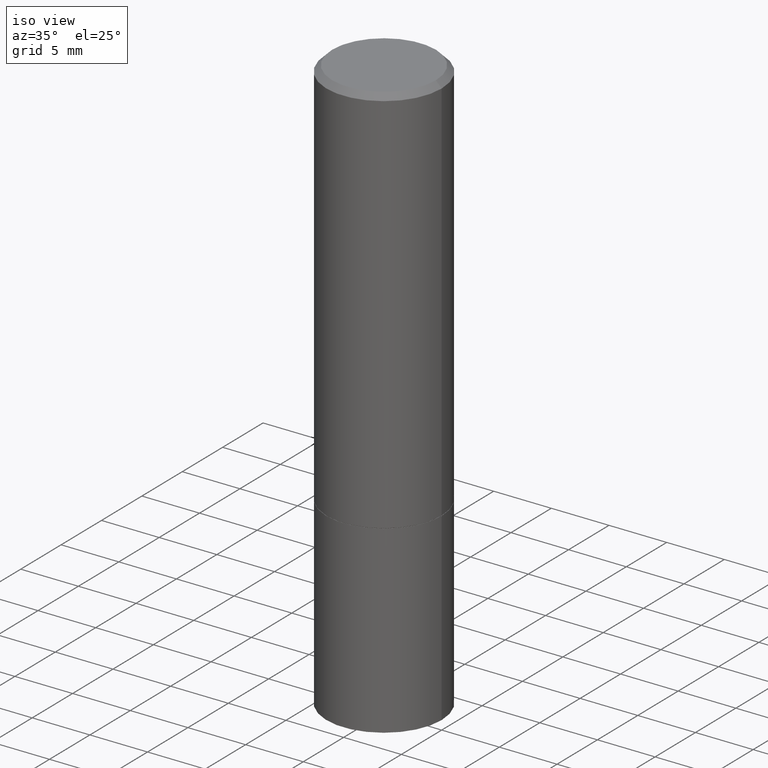
[diagram: clean part render]
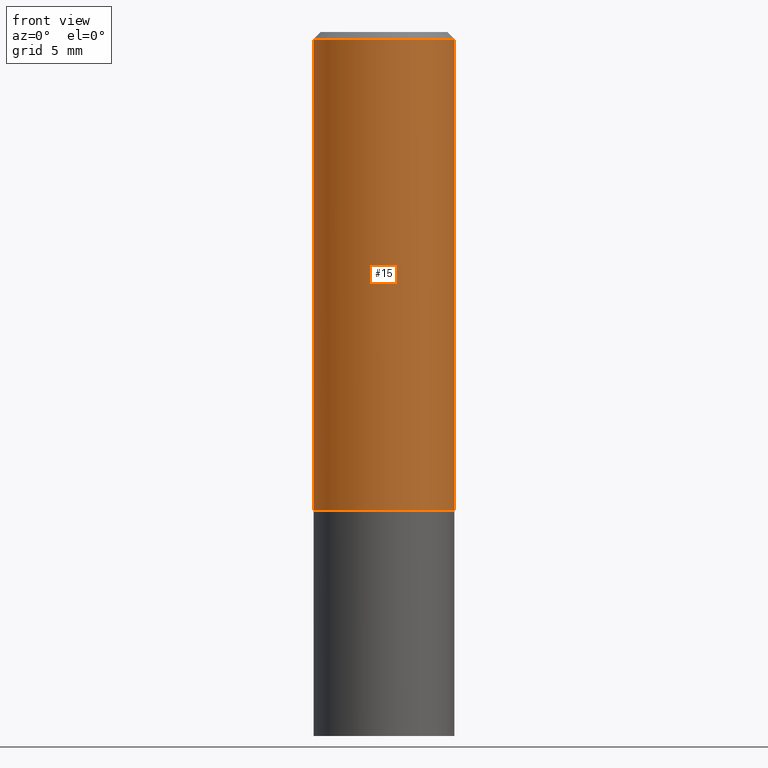
[diagram: tour spotlight — one face highlighted and labeled with its STEP entity id]
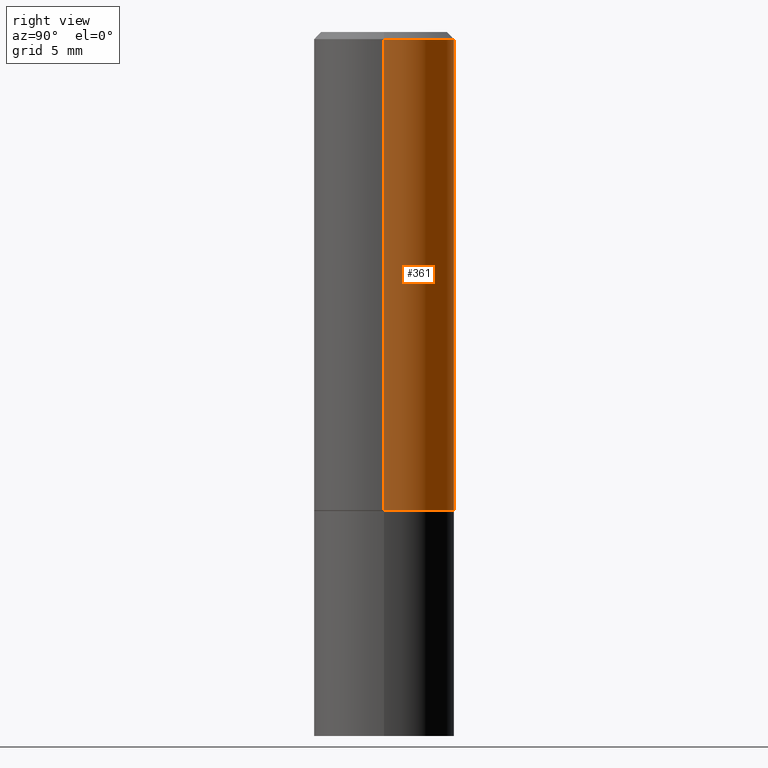
[diagram: tour spotlight — one face highlighted and labeled with its STEP entity id]
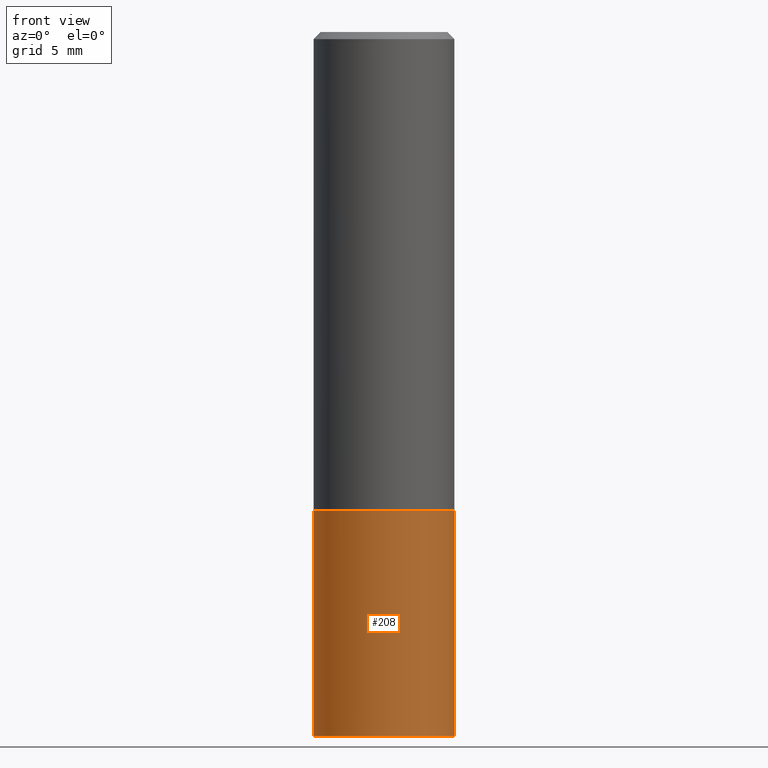
[diagram: tour spotlight — one face highlighted and labeled with its STEP entity id]
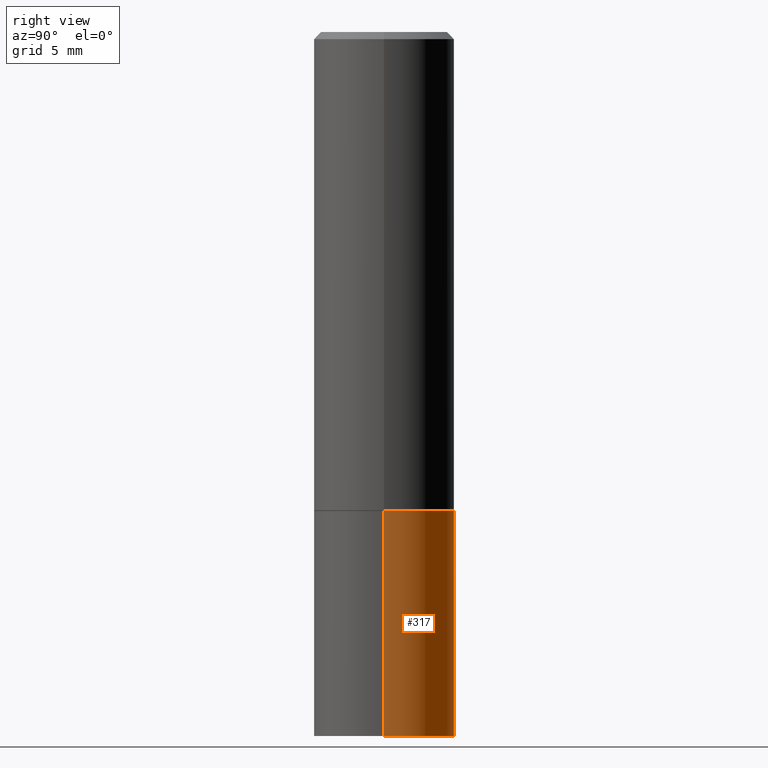
[diagram: tour spotlight — one face highlighted and labeled with its STEP entity id]
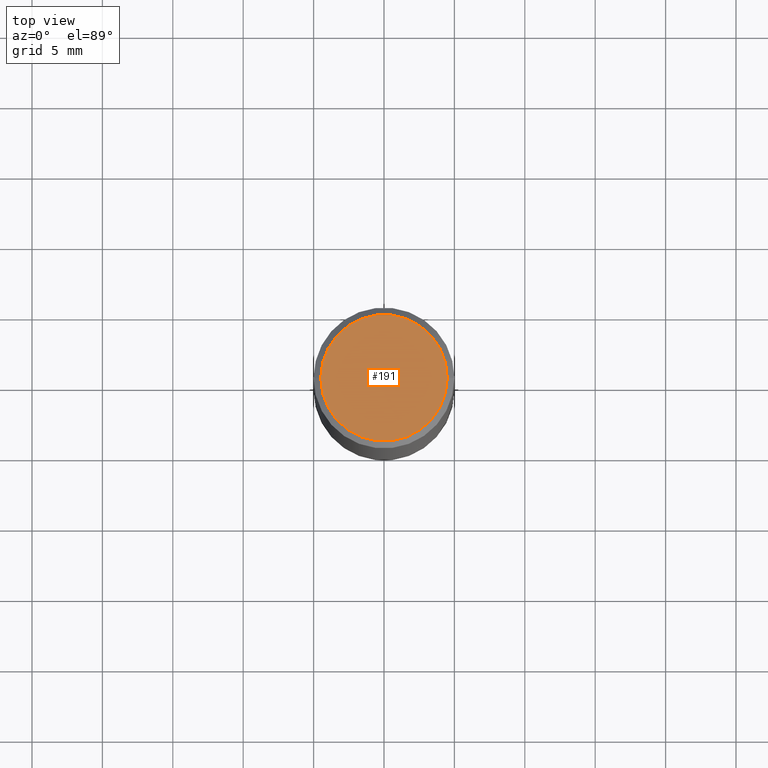
[diagram: tour spotlight — one face highlighted and labeled with its STEP entity id]
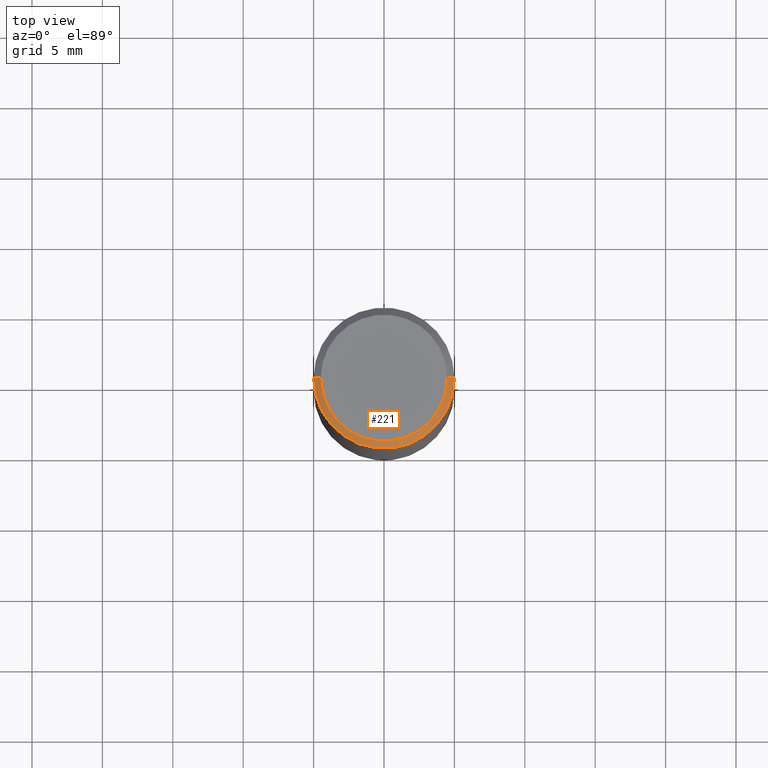
[diagram: tour spotlight — one face highlighted and labeled with its STEP entity id]
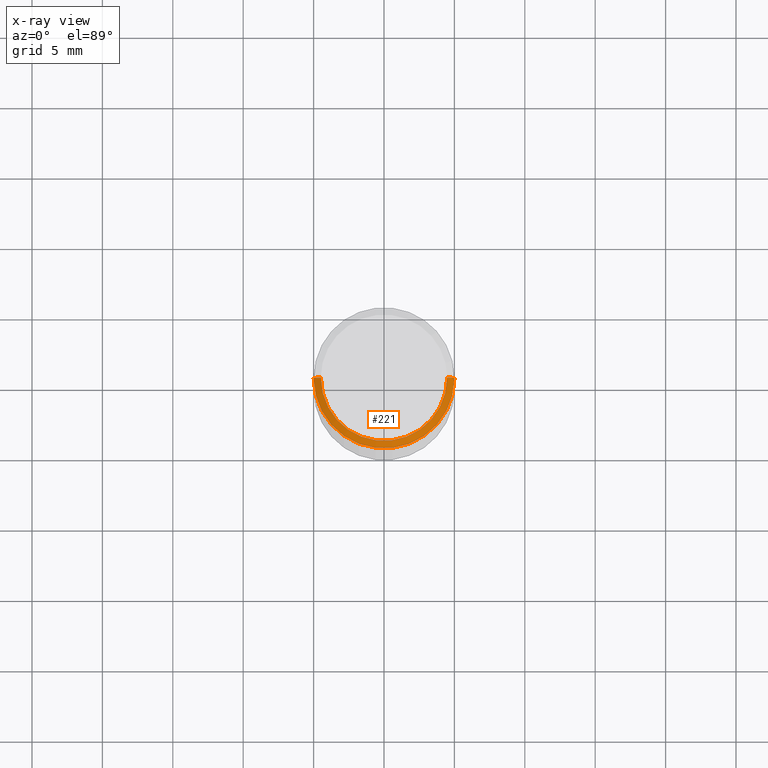
[diagram: x-ray of the same camera — body ghosted, this tour face saturated]
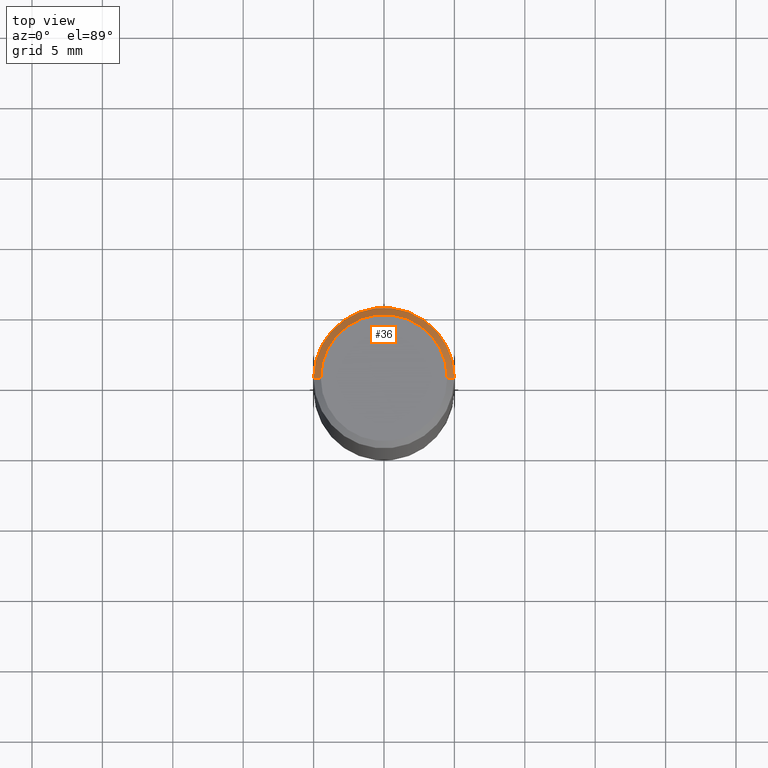
[diagram: tour spotlight — one face highlighted and labeled with its STEP entity id]
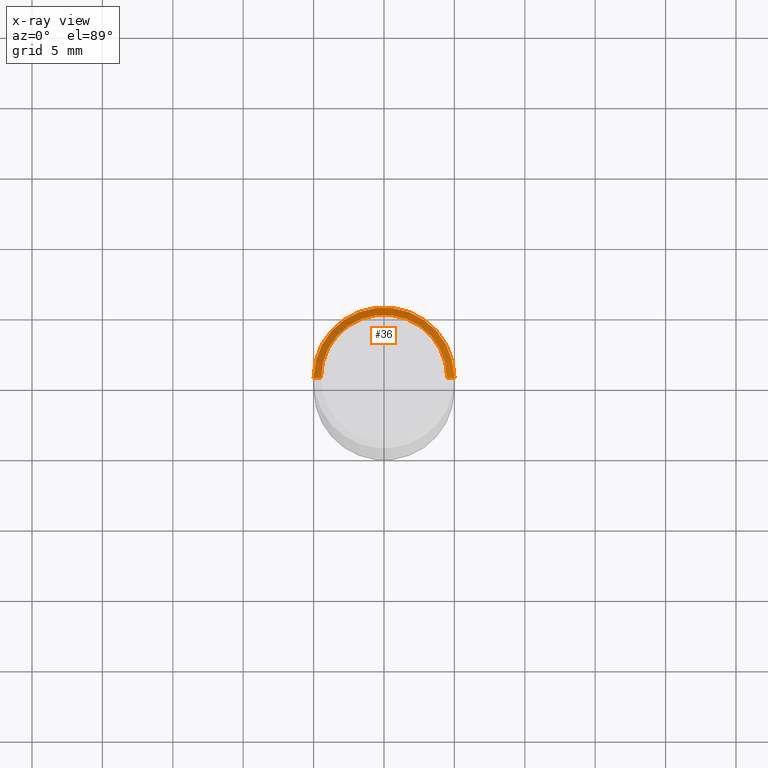
[diagram: x-ray of the same camera — body ghosted, this tour face saturated]
A machine part: a face-by-face anatomy tour. The part has 12 B-rep faces; the first image is the clean iso view, then the 7 largest visible faces are spotlighted one at a time (largest first), each with its STEP entity span.

Face 1 — front view, entity #15. In plain terms, the highlighted cylindrical surface (partial cylindrical patch) has radius 5 mm, axis along (-0, 0, 1).
Definition (entity closure, byte-faithful):
#5 = CYLINDRICAL_SURFACE ( 'NONE', #31, 0.1968499999999999417 ) ;
#15 = ADVANCED_FACE ( 'NONE', ( #351 ), #5, .T. ) ;
#31 = AXIS2_PLACEMENT_3D ( 'NONE', #315, #229, #146 ) ;
#44 = DIRECTION ( 'NONE',  ( -2.445468806185136877E-29, 3.491481338843145188E-15, 1.000000000000000000 ) ) ;
#47 = CARTESIAN_POINT ( 'NONE',  ( 0.1968499999999998307, -1.420318657638187938E-15, -0.02000000000000004552 ) ) ;
#69 = EDGE_CURVE ( 'NONE', #106, #313, #169, .T. ) ;
#71 = CARTESIAN_POINT ( 'NONE',  ( -0.1968499999999998307, 1.304766576325677324E-15, -0.02000000000000004552 ) ) ;
#75 = AXIS2_PLACEMENT_3D ( 'NONE', #202, #316, #219 ) ;
#78 = CIRCLE ( 'NONE', #75, 0.1968499999999998307 ) ;
#106 = VERTEX_POINT ( 'NONE', #340 ) ;
#124 = CARTESIAN_POINT ( 'NONE',  ( -0.1968499999999999417, 1.398703375343756802E-15, -9.682923725166779474E-30 ) ) ;
#125 = AXIS2_PLACEMENT_3D ( 'NONE', #178, #227, #236 ) ;
#128 = EDGE_CURVE ( 'NONE', #137, #238, #78, .T. ) ;
#130 = CARTESIAN_POINT ( 'NONE',  ( 0.1968499999999999417, -1.374596203102541214E-15, 9.598753983154296654E-30 ) ) ;
#131 = VECTOR ( 'NONE', #44, 39.37007874015748143 ) ;
#135 = ORIENTED_EDGE ( 'NONE', *, *, #69, .T. ) ;
#137 = VERTEX_POINT ( 'NONE', #71 ) ;
#146 = DIRECTION ( 'NONE',  ( 1.000000000000000000, -6.982962677686266711E-15, 4.876176775795935793E-29 ) ) ;
#151 = ORIENTED_EDGE ( 'NONE', *, *, #128, .F. ) ;
#169 = CIRCLE ( 'NONE', #125, 0.1968500000000000527 ) ;
#171 = EDGE_CURVE ( 'NONE', #313, #238, #211, .T. ) ;
#177 = ORIENTED_EDGE ( 'NONE', *, *, #171, .T. ) ;
#178 = CARTESIAN_POINT ( 'NONE',  ( 3.271059075153238310E-29, -4.670205438836591729E-15, -1.337599999999999900 ) ) ;
#183 = LINE ( 'NONE', #124, #273 ) ;
#202 = CARTESIAN_POINT ( 'NONE',  ( 4.890937612370284544E-31, -6.982962677686307633E-17, -0.02000000000000004552 ) ) ;
#211 = LINE ( 'NONE', #130, #131 ) ;
#219 = DIRECTION ( 'NONE',  ( 1.000000000000000000, -6.982962677686266711E-15, 0.000000000000000000 ) ) ;
#227 = DIRECTION ( 'NONE',  ( -2.445468806185136597E-29, 3.491481338843145583E-15, 1.000000000000000000 ) ) ;
#229 = DIRECTION ( 'NONE',  ( -2.445468806185136597E-29, 3.491481338843145583E-15, 1.000000000000000000 ) ) ;
#232 = EDGE_CURVE ( 'NONE', #106, #137, #183, .T. ) ;
#236 = DIRECTION ( 'NONE',  ( 1.000000000000000000, -6.982962677686266711E-15, 0.000000000000000000 ) ) ;
#237 = CARTESIAN_POINT ( 'NONE',  ( 0.1968500000000000527, -6.044801641939134127E-15, -1.337599999999999900 ) ) ;
#238 = VERTEX_POINT ( 'NONE', #47 ) ;
#251 = EDGE_LOOP ( 'NONE', ( #256, #135, #177, #151 ) ) ;
#256 = ORIENTED_EDGE ( 'NONE', *, *, #232, .F. ) ;
#273 = VECTOR ( 'NONE', #330, 39.37007874015748143 ) ;
#313 = VERTEX_POINT ( 'NONE', #237 ) ;
#315 = CARTESIAN_POINT ( 'NONE',  ( 0.000000000000000000, 0.000000000000000000, 0.000000000000000000 ) ) ;
#316 = DIRECTION ( 'NONE',  ( -2.445468806185136597E-29, 3.491481338843145583E-15, 1.000000000000000000 ) ) ;
#330 = DIRECTION ( 'NONE',  ( -2.445468806185136877E-29, 3.491481338843145188E-15, 1.000000000000000000 ) ) ;
#340 = CARTESIAN_POINT ( 'NONE',  ( -0.1968500000000000527, -9.713141574629691345E-16, -1.337599999999999900 ) ) ;
#351 = FACE_OUTER_BOUND ( 'NONE', #251, .T. ) ;

Face 2 — right view, entity #361. In plain terms, the highlighted cylindrical surface (partial cylindrical patch) has radius 5 mm, axis along (-0, 0, 1).
Definition (entity closure, byte-faithful):
#37 = DIRECTION ( 'NONE',  ( -2.445468806185136597E-29, 3.491481338843145583E-15, 1.000000000000000000 ) ) ;
#40 = AXIS2_PLACEMENT_3D ( 'NONE', #116, #322, #41 ) ;
#41 = DIRECTION ( 'NONE',  ( 1.000000000000000000, -6.982962677686266711E-15, 4.876176775795935793E-29 ) ) ;
#44 = DIRECTION ( 'NONE',  ( -2.445468806185136877E-29, 3.491481338843145188E-15, 1.000000000000000000 ) ) ;
#47 = CARTESIAN_POINT ( 'NONE',  ( 0.1968499999999998307, -1.420318657638187938E-15, -0.02000000000000004552 ) ) ;
#59 = ORIENTED_EDGE ( 'NONE', *, *, #281, .F. ) ;
#67 = CARTESIAN_POINT ( 'NONE',  ( 3.271059075153238310E-29, -4.670205438836591729E-15, -1.337599999999999900 ) ) ;
#71 = CARTESIAN_POINT ( 'NONE',  ( -0.1968499999999998307, 1.304766576325677324E-15, -0.02000000000000004552 ) ) ;
#79 = ORIENTED_EDGE ( 'NONE', *, *, #171, .F. ) ;
#106 = VERTEX_POINT ( 'NONE', #340 ) ;
#107 = ORIENTED_EDGE ( 'NONE', *, *, #201, .T. ) ;
#116 = CARTESIAN_POINT ( 'NONE',  ( 0.000000000000000000, 0.000000000000000000, 0.000000000000000000 ) ) ;
#122 = DIRECTION ( 'NONE',  ( -2.445468806185136597E-29, 3.491481338843145583E-15, 1.000000000000000000 ) ) ;
#124 = CARTESIAN_POINT ( 'NONE',  ( -0.1968499999999999417, 1.398703375343756802E-15, -9.682923725166779474E-30 ) ) ;
#130 = CARTESIAN_POINT ( 'NONE',  ( 0.1968499999999999417, -1.374596203102541214E-15, 9.598753983154296654E-30 ) ) ;
#131 = VECTOR ( 'NONE', #44, 39.37007874015748143 ) ;
#137 = VERTEX_POINT ( 'NONE', #71 ) ;
#143 = DIRECTION ( 'NONE',  ( 1.000000000000000000, -6.982962677686266711E-15, 0.000000000000000000 ) ) ;
#171 = EDGE_CURVE ( 'NONE', #313, #238, #211, .T. ) ;
#173 = AXIS2_PLACEMENT_3D ( 'NONE', #67, #122, #276 ) ;
#179 = FACE_OUTER_BOUND ( 'NONE', #324, .T. ) ;
#183 = LINE ( 'NONE', #124, #273 ) ;
#201 = EDGE_CURVE ( 'NONE', #313, #106, #336, .T. ) ;
#210 = CARTESIAN_POINT ( 'NONE',  ( 4.890937612370284544E-31, -6.982962677686307633E-17, -0.02000000000000004552 ) ) ;
#211 = LINE ( 'NONE', #130, #131 ) ;
#214 = CIRCLE ( 'NONE', #258, 0.1968499999999998307 ) ;
#232 = EDGE_CURVE ( 'NONE', #106, #137, #183, .T. ) ;
#237 = CARTESIAN_POINT ( 'NONE',  ( 0.1968500000000000527, -6.044801641939134127E-15, -1.337599999999999900 ) ) ;
#238 = VERTEX_POINT ( 'NONE', #47 ) ;
#258 = AXIS2_PLACEMENT_3D ( 'NONE', #210, #37, #143 ) ;
#273 = VECTOR ( 'NONE', #330, 39.37007874015748143 ) ;
#276 = DIRECTION ( 'NONE',  ( 1.000000000000000000, -6.982962677686266711E-15, 0.000000000000000000 ) ) ;
#281 = EDGE_CURVE ( 'NONE', #238, #137, #214, .T. ) ;
#283 = ORIENTED_EDGE ( 'NONE', *, *, #232, .T. ) ;
#299 = CYLINDRICAL_SURFACE ( 'NONE', #40, 0.1968499999999999417 ) ;
#313 = VERTEX_POINT ( 'NONE', #237 ) ;
#322 = DIRECTION ( 'NONE',  ( -2.445468806185136597E-29, 3.491481338843145583E-15, 1.000000000000000000 ) ) ;
#324 = EDGE_LOOP ( 'NONE', ( #107, #283, #59, #79 ) ) ;
#330 = DIRECTION ( 'NONE',  ( -2.445468806185136877E-29, 3.491481338843145188E-15, 1.000000000000000000 ) ) ;
#336 = CIRCLE ( 'NONE', #173, 0.1968500000000000527 ) ;
#340 = CARTESIAN_POINT ( 'NONE',  ( -0.1968500000000000527, -9.713141574629691345E-16, -1.337599999999999900 ) ) ;
#361 = ADVANCED_FACE ( 'NONE', ( #179 ), #299, .T. ) ;

Face 3 — front view, entity #208. In plain terms, the highlighted cylindrical surface (partial cylindrical patch) has radius 5 mm, axis along (-0, 0, 1).
Definition (entity closure, byte-faithful):
#8 = LINE ( 'NONE', #257, #265 ) ;
#13 = CYLINDRICAL_SURFACE ( 'NONE', #132, 0.1968500000000000250 ) ;
#26 = ORIENTED_EDGE ( 'NONE', *, *, #105, .T. ) ;
#42 = CARTESIAN_POINT ( 'NONE',  ( 0.000000000000000000, 0.000000000000000000, 0.000000000000000000 ) ) ;
#57 = EDGE_CURVE ( 'NONE', #163, #109, #8, .T. ) ;
#64 = CARTESIAN_POINT ( 'NONE',  ( 3.273504543959423913E-29, -4.673696920175434737E-15, -1.338600000000000012 ) ) ;
#66 = DIRECTION ( 'NONE',  ( 1.000000000000000000, -6.982962677686267499E-15, 0.000000000000000000 ) ) ;
#73 = CARTESIAN_POINT ( 'NONE',  ( -0.1968500000000000250, -4.374635592500326618E-15, -1.968500000000000139 ) ) ;
#77 = ORIENTED_EDGE ( 'NONE', *, *, #341, .T. ) ;
#82 = EDGE_LOOP ( 'NONE', ( #293, #77, #26, #312 ) ) ;
#86 = CARTESIAN_POINT ( 'NONE',  ( 0.1968500000000000250, -6.048293123277976345E-15, -1.338600000000000012 ) ) ;
#90 = CARTESIAN_POINT ( 'NONE',  ( 4.813905344975441835E-29, -6.872981015512731707E-15, -1.968500000000000139 ) ) ;
#103 = DIRECTION ( 'NONE',  ( 1.000000000000000000, -6.982962677686265922E-15, 4.876176775795935793E-29 ) ) ;
#105 = EDGE_CURVE ( 'NONE', #172, #114, #115, .T. ) ;
#109 = VERTEX_POINT ( 'NONE', #345 ) ;
#114 = VERTEX_POINT ( 'NONE', #86 ) ;
#115 = LINE ( 'NONE', #231, #242 ) ;
#132 = AXIS2_PLACEMENT_3D ( 'NONE', #42, #300, #103 ) ;
#133 = CIRCLE ( 'NONE', #333, 0.1968500000000000250 ) ;
#141 = DIRECTION ( 'NONE',  ( -2.445468806185136877E-29, 3.491481338843145188E-15, 1.000000000000000000 ) ) ;
#163 = VERTEX_POINT ( 'NONE', #73 ) ;
#172 = VERTEX_POINT ( 'NONE', #218 ) ;
#176 = DIRECTION ( 'NONE',  ( -2.445468806185136597E-29, 3.491481338843145583E-15, 1.000000000000000000 ) ) ;
#208 = ADVANCED_FACE ( 'NONE', ( #359 ), #13, .T. ) ;
#215 = CIRCLE ( 'NONE', #314, 0.1968500000000000250 ) ;
#218 = CARTESIAN_POINT ( 'NONE',  ( 0.1968500000000000250, -8.247577218615273316E-15, -1.968500000000000139 ) ) ;
#231 = CARTESIAN_POINT ( 'NONE',  ( 0.1968500000000000250, -1.374596203102541608E-15, 9.598753983154300858E-30 ) ) ;
#242 = VECTOR ( 'NONE', #141, 39.37007874015748143 ) ;
#257 = CARTESIAN_POINT ( 'NONE',  ( -0.1968500000000000250, 1.398703375343757393E-15, -9.682923725166783677E-30 ) ) ;
#265 = VECTOR ( 'NONE', #319, 39.37007874015748143 ) ;
#293 = ORIENTED_EDGE ( 'NONE', *, *, #57, .F. ) ;
#300 = DIRECTION ( 'NONE',  ( -2.445468806185136597E-29, 3.491481338843145583E-15, 1.000000000000000000 ) ) ;
#312 = ORIENTED_EDGE ( 'NONE', *, *, #356, .F. ) ;
#314 = AXIS2_PLACEMENT_3D ( 'NONE', #64, #176, #347 ) ;
#319 = DIRECTION ( 'NONE',  ( -2.445468806185136877E-29, 3.491481338843145188E-15, 1.000000000000000000 ) ) ;
#333 = AXIS2_PLACEMENT_3D ( 'NONE', #90, #352, #66 ) ;
#341 = EDGE_CURVE ( 'NONE', #163, #172, #133, .T. ) ;
#345 = CARTESIAN_POINT ( 'NONE',  ( -0.1968500000000000250, -4.374635592500326618E-15, -1.338600000000000012 ) ) ;
#347 = DIRECTION ( 'NONE',  ( 1.000000000000000000, -6.982962677686267499E-15, 0.000000000000000000 ) ) ;
#352 = DIRECTION ( 'NONE',  ( -2.445468806185136597E-29, 3.491481338843145583E-15, 1.000000000000000000 ) ) ;
#356 = EDGE_CURVE ( 'NONE', #109, #114, #215, .T. ) ;
#359 = FACE_OUTER_BOUND ( 'NONE', #82, .T. ) ;

Face 4 — right view, entity #317. In plain terms, the highlighted cylindrical surface (partial cylindrical patch) has radius 5 mm, axis along (-0, 0, 1).
Definition (entity closure, byte-faithful):
#8 = LINE ( 'NONE', #257, #265 ) ;
#12 = FACE_OUTER_BOUND ( 'NONE', #209, .T. ) ;
#16 = AXIS2_PLACEMENT_3D ( 'NONE', #150, #290, #266 ) ;
#28 = CIRCLE ( 'NONE', #233, 0.1968500000000000250 ) ;
#48 = AXIS2_PLACEMENT_3D ( 'NONE', #156, #247, #274 ) ;
#57 = EDGE_CURVE ( 'NONE', #163, #109, #8, .T. ) ;
#58 = ORIENTED_EDGE ( 'NONE', *, *, #252, .F. ) ;
#73 = CARTESIAN_POINT ( 'NONE',  ( -0.1968500000000000250, -4.374635592500326618E-15, -1.968500000000000139 ) ) ;
#86 = CARTESIAN_POINT ( 'NONE',  ( 0.1968500000000000250, -6.048293123277976345E-15, -1.338600000000000012 ) ) ;
#105 = EDGE_CURVE ( 'NONE', #172, #114, #115, .T. ) ;
#108 = CIRCLE ( 'NONE', #48, 0.1968500000000000250 ) ;
#109 = VERTEX_POINT ( 'NONE', #345 ) ;
#114 = VERTEX_POINT ( 'NONE', #86 ) ;
#115 = LINE ( 'NONE', #231, #242 ) ;
#140 = ORIENTED_EDGE ( 'NONE', *, *, #310, .T. ) ;
#141 = DIRECTION ( 'NONE',  ( -2.445468806185136877E-29, 3.491481338843145188E-15, 1.000000000000000000 ) ) ;
#150 = CARTESIAN_POINT ( 'NONE',  ( 0.000000000000000000, 0.000000000000000000, 0.000000000000000000 ) ) ;
#156 = CARTESIAN_POINT ( 'NONE',  ( 3.273504543959423913E-29, -4.673696920175434737E-15, -1.338600000000000012 ) ) ;
#163 = VERTEX_POINT ( 'NONE', #73 ) ;
#172 = VERTEX_POINT ( 'NONE', #218 ) ;
#205 = CARTESIAN_POINT ( 'NONE',  ( 4.813905344975441835E-29, -6.872981015512731707E-15, -1.968500000000000139 ) ) ;
#209 = EDGE_LOOP ( 'NONE', ( #140, #309, #58, #224 ) ) ;
#218 = CARTESIAN_POINT ( 'NONE',  ( 0.1968500000000000250, -8.247577218615273316E-15, -1.968500000000000139 ) ) ;
#224 = ORIENTED_EDGE ( 'NONE', *, *, #105, .F. ) ;
#231 = CARTESIAN_POINT ( 'NONE',  ( 0.1968500000000000250, -1.374596203102541608E-15, 9.598753983154300858E-30 ) ) ;
#233 = AXIS2_PLACEMENT_3D ( 'NONE', #205, #325, #239 ) ;
#239 = DIRECTION ( 'NONE',  ( 1.000000000000000000, -6.982962677686267499E-15, 0.000000000000000000 ) ) ;
#242 = VECTOR ( 'NONE', #141, 39.37007874015748143 ) ;
#247 = DIRECTION ( 'NONE',  ( -2.445468806185136597E-29, 3.491481338843145583E-15, 1.000000000000000000 ) ) ;
#252 = EDGE_CURVE ( 'NONE', #114, #109, #108, .T. ) ;
#257 = CARTESIAN_POINT ( 'NONE',  ( -0.1968500000000000250, 1.398703375343757393E-15, -9.682923725166783677E-30 ) ) ;
#263 = CYLINDRICAL_SURFACE ( 'NONE', #16, 0.1968500000000000250 ) ;
#265 = VECTOR ( 'NONE', #319, 39.37007874015748143 ) ;
#266 = DIRECTION ( 'NONE',  ( 1.000000000000000000, -6.982962677686265922E-15, 4.876176775795935793E-29 ) ) ;
#274 = DIRECTION ( 'NONE',  ( 1.000000000000000000, -6.982962677686267499E-15, 0.000000000000000000 ) ) ;
#290 = DIRECTION ( 'NONE',  ( -2.445468806185136597E-29, 3.491481338843145583E-15, 1.000000000000000000 ) ) ;
#309 = ORIENTED_EDGE ( 'NONE', *, *, #57, .T. ) ;
#310 = EDGE_CURVE ( 'NONE', #172, #163, #28, .T. ) ;
#317 = ADVANCED_FACE ( 'NONE', ( #12 ), #263, .T. ) ;
#319 = DIRECTION ( 'NONE',  ( -2.445468806185136877E-29, 3.491481338843145188E-15, 1.000000000000000000 ) ) ;
#325 = DIRECTION ( 'NONE',  ( -2.445468806185136597E-29, 3.491481338843145583E-15, 1.000000000000000000 ) ) ;
#345 = CARTESIAN_POINT ( 'NONE',  ( -0.1968500000000000250, -4.374635592500326618E-15, -1.338600000000000012 ) ) ;

Face 5 — top view, entity #191. In plain terms, the highlighted planar face has unit normal (0, -0, -1).
Definition (entity closure, byte-faithful):
#14 = FACE_OUTER_BOUND ( 'NONE', #168, .T. ) ;
#20 = PLANE ( 'NONE',  #81 ) ;
#30 = CARTESIAN_POINT ( 'NONE',  ( -0.1768499999999998407, 1.269851762937246464E-15, -8.758475317130876682E-30 ) ) ;
#32 = ORIENTED_EDGE ( 'NONE', *, *, #102, .T. ) ;
#39 = DIRECTION ( 'NONE',  ( 1.000000000000000000, -6.982962677686266711E-15, 4.876176775795936353E-29 ) ) ;
#54 = VERTEX_POINT ( 'NONE', #30 ) ;
#60 = AXIS2_PLACEMENT_3D ( 'NONE', #62, #175, #39 ) ;
#62 = CARTESIAN_POINT ( 'NONE',  ( 0.000000000000000000, 0.000000000000000000, 0.000000000000000000 ) ) ;
#63 = DIRECTION ( 'NONE',  ( 1.000000000000000000, -6.982962677686266711E-15, 4.876176775795936353E-29 ) ) ;
#81 = AXIS2_PLACEMENT_3D ( 'NONE', #331, #357, #152 ) ;
#83 = CARTESIAN_POINT ( 'NONE',  ( 0.000000000000000000, 0.000000000000000000, 0.000000000000000000 ) ) ;
#94 = AXIS2_PLACEMENT_3D ( 'NONE', #83, #323, #63 ) ;
#102 = EDGE_CURVE ( 'NONE', #54, #335, #360, .T. ) ;
#119 = EDGE_CURVE ( 'NONE', #335, #54, #181, .T. ) ;
#139 = ORIENTED_EDGE ( 'NONE', *, *, #119, .T. ) ;
#152 = DIRECTION ( 'NONE',  ( -1.000000000000000000, 6.982962677686265922E-15, -4.876176775795935793E-29 ) ) ;
#168 = EDGE_LOOP ( 'NONE', ( #32, #139 ) ) ;
#175 = DIRECTION ( 'NONE',  ( -2.445468806185136597E-29, 3.491481338843145583E-15, 1.000000000000000000 ) ) ;
#181 = CIRCLE ( 'NONE', #94, 0.1768499999999998407 ) ;
#191 = ADVANCED_FACE ( 'NONE', ( #14 ), #20, .F. ) ;
#323 = DIRECTION ( 'NONE',  ( -2.445468806185136597E-29, 3.491481338843145583E-15, 1.000000000000000000 ) ) ;
#331 = CARTESIAN_POINT ( 'NONE',  ( 1.234936949548815012E-15, 0.1768499999999998407, -6.174684747744098725E-16 ) ) ;
#335 = VERTEX_POINT ( 'NONE', #350 ) ;
#350 = CARTESIAN_POINT ( 'NONE',  ( 0.1768499999999998407, -1.316798864272041155E-15, 8.922390245354091239E-30 ) ) ;
#357 = DIRECTION ( 'NONE',  ( 2.438088387897960049E-29, -3.491481338843145188E-15, -1.000000000000000000 ) ) ;
#360 = CIRCLE ( 'NONE', #60, 0.1768499999999998407 ) ;

Face 6 — top view, entity #221. An x-ray twin of the same camera follows (body ghosted, this face saturated) — the face is partly hidden behind the body. In plain terms, the highlighted conical surface has half-angle 45 deg.
Definition (entity closure, byte-faithful):
#25 = ORIENTED_EDGE ( 'NONE', *, *, #297, .T. ) ;
#27 = EDGE_CURVE ( 'NONE', #335, #238, #200, .T. ) ;
#30 = CARTESIAN_POINT ( 'NONE',  ( -0.1768499999999998407, 1.269851762937246464E-15, -8.758475317130876682E-30 ) ) ;
#35 = ORIENTED_EDGE ( 'NONE', *, *, #27, .F. ) ;
#39 = DIRECTION ( 'NONE',  ( 1.000000000000000000, -6.982962677686266711E-15, 4.876176775795936353E-29 ) ) ;
#47 = CARTESIAN_POINT ( 'NONE',  ( 0.1968499999999998307, -1.420318657638187938E-15, -0.02000000000000004552 ) ) ;
#54 = VERTEX_POINT ( 'NONE', #30 ) ;
#60 = AXIS2_PLACEMENT_3D ( 'NONE', #62, #175, #39 ) ;
#62 = CARTESIAN_POINT ( 'NONE',  ( 0.000000000000000000, 0.000000000000000000, 0.000000000000000000 ) ) ;
#71 = CARTESIAN_POINT ( 'NONE',  ( -0.1968499999999998307, 1.304766576325677324E-15, -0.02000000000000004552 ) ) ;
#74 = FACE_OUTER_BOUND ( 'NONE', #280, .T. ) ;
#75 = AXIS2_PLACEMENT_3D ( 'NONE', #202, #316, #219 ) ;
#78 = CIRCLE ( 'NONE', #75, 0.1968499999999998307 ) ;
#85 = CARTESIAN_POINT ( 'NONE',  ( 0.1968499999999998307, -1.420318657638187938E-15, -0.02000000000000004552 ) ) ;
#102 = EDGE_CURVE ( 'NONE', #54, #335, #360, .T. ) ;
#118 = CARTESIAN_POINT ( 'NONE',  ( -0.1968499999999998307, 1.304766576325677324E-15, -0.02000000000000004552 ) ) ;
#128 = EDGE_CURVE ( 'NONE', #137, #238, #78, .T. ) ;
#137 = VERTEX_POINT ( 'NONE', #71 ) ;
#138 = AXIS2_PLACEMENT_3D ( 'NONE', #245, #269, #154 ) ;
#147 = DIRECTION ( 'NONE',  ( -0.7071067811865465735, 2.468850131082246805E-15, -0.7071067811865484609 ) ) ;
#148 = DIRECTION ( 'NONE',  ( 0.7071067811865465735, -7.319954787623252890E-15, -0.7071067811865484609 ) ) ;
#154 = DIRECTION ( 'NONE',  ( -1.000000000000000000, 6.982962677686266711E-15, 0.000000000000000000 ) ) ;
#175 = DIRECTION ( 'NONE',  ( -2.445468806185136597E-29, 3.491481338843145583E-15, 1.000000000000000000 ) ) ;
#190 = VECTOR ( 'NONE', #147, 39.37007874015748143 ) ;
#195 = ORIENTED_EDGE ( 'NONE', *, *, #128, .T. ) ;
#200 = LINE ( 'NONE', #85, #354 ) ;
#202 = CARTESIAN_POINT ( 'NONE',  ( 4.890937612370284544E-31, -6.982962677686307633E-17, -0.02000000000000004552 ) ) ;
#219 = DIRECTION ( 'NONE',  ( 1.000000000000000000, -6.982962677686266711E-15, 0.000000000000000000 ) ) ;
#221 = ADVANCED_FACE ( 'NONE', ( #74 ), #279, .T. ) ;
#234 = LINE ( 'NONE', #118, #190 ) ;
#238 = VERTEX_POINT ( 'NONE', #47 ) ;
#245 = CARTESIAN_POINT ( 'NONE',  ( 4.890937612370284544E-31, -6.982962677686307633E-17, -0.02000000000000004552 ) ) ;
#269 = DIRECTION ( 'NONE',  ( 2.445468806185136597E-29, -3.491481338843145583E-15, -1.000000000000000000 ) ) ;
#279 = CONICAL_SURFACE ( 'NONE', #138, 0.1968499999999998307, 0.7853981633974469467 ) ;
#280 = EDGE_LOOP ( 'NONE', ( #35, #338, #25, #195 ) ) ;
#297 = EDGE_CURVE ( 'NONE', #54, #137, #234, .T. ) ;
#316 = DIRECTION ( 'NONE',  ( -2.445468806185136597E-29, 3.491481338843145583E-15, 1.000000000000000000 ) ) ;
#335 = VERTEX_POINT ( 'NONE', #350 ) ;
#338 = ORIENTED_EDGE ( 'NONE', *, *, #102, .F. ) ;
#350 = CARTESIAN_POINT ( 'NONE',  ( 0.1768499999999998407, -1.316798864272041155E-15, 8.922390245354091239E-30 ) ) ;
#354 = VECTOR ( 'NONE', #148, 39.37007874015748143 ) ;
#360 = CIRCLE ( 'NONE', #60, 0.1768499999999998407 ) ;

Face 7 — top view, entity #36. An x-ray twin of the same camera follows (body ghosted, this face saturated) — the face is partly hidden behind the body. In plain terms, the highlighted conical surface has half-angle 45 deg.
Definition (entity closure, byte-faithful):
#6 = DIRECTION ( 'NONE',  ( -1.000000000000000000, 6.982962677686266711E-15, 0.000000000000000000 ) ) ;
#11 = ORIENTED_EDGE ( 'NONE', *, *, #119, .F. ) ;
#27 = EDGE_CURVE ( 'NONE', #335, #238, #200, .T. ) ;
#30 = CARTESIAN_POINT ( 'NONE',  ( -0.1768499999999998407, 1.269851762937246464E-15, -8.758475317130876682E-30 ) ) ;
#34 = ORIENTED_EDGE ( 'NONE', *, *, #297, .F. ) ;
#36 = ADVANCED_FACE ( 'NONE', ( #204 ), #164, .T. ) ;
#37 = DIRECTION ( 'NONE',  ( -2.445468806185136597E-29, 3.491481338843145583E-15, 1.000000000000000000 ) ) ;
#47 = CARTESIAN_POINT ( 'NONE',  ( 0.1968499999999998307, -1.420318657638187938E-15, -0.02000000000000004552 ) ) ;
#54 = VERTEX_POINT ( 'NONE', #30 ) ;
#63 = DIRECTION ( 'NONE',  ( 1.000000000000000000, -6.982962677686266711E-15, 4.876176775795936353E-29 ) ) ;
#71 = CARTESIAN_POINT ( 'NONE',  ( -0.1968499999999998307, 1.304766576325677324E-15, -0.02000000000000004552 ) ) ;
#83 = CARTESIAN_POINT ( 'NONE',  ( 0.000000000000000000, 0.000000000000000000, 0.000000000000000000 ) ) ;
#85 = CARTESIAN_POINT ( 'NONE',  ( 0.1968499999999998307, -1.420318657638187938E-15, -0.02000000000000004552 ) ) ;
#89 = CARTESIAN_POINT ( 'NONE',  ( 4.890937612370284544E-31, -6.982962677686307633E-17, -0.02000000000000004552 ) ) ;
#94 = AXIS2_PLACEMENT_3D ( 'NONE', #83, #323, #63 ) ;
#117 = EDGE_LOOP ( 'NONE', ( #11, #349, #264, #34 ) ) ;
#118 = CARTESIAN_POINT ( 'NONE',  ( -0.1968499999999998307, 1.304766576325677324E-15, -0.02000000000000004552 ) ) ;
#119 = EDGE_CURVE ( 'NONE', #335, #54, #181, .T. ) ;
#137 = VERTEX_POINT ( 'NONE', #71 ) ;
#143 = DIRECTION ( 'NONE',  ( 1.000000000000000000, -6.982962677686266711E-15, 0.000000000000000000 ) ) ;
#147 = DIRECTION ( 'NONE',  ( -0.7071067811865465735, 2.468850131082246805E-15, -0.7071067811865484609 ) ) ;
#148 = DIRECTION ( 'NONE',  ( 0.7071067811865465735, -7.319954787623252890E-15, -0.7071067811865484609 ) ) ;
#164 = CONICAL_SURFACE ( 'NONE', #364, 0.1968499999999998307, 0.7853981633974469467 ) ;
#181 = CIRCLE ( 'NONE', #94, 0.1768499999999998407 ) ;
#190 = VECTOR ( 'NONE', #147, 39.37007874015748143 ) ;
#200 = LINE ( 'NONE', #85, #354 ) ;
#204 = FACE_OUTER_BOUND ( 'NONE', #117, .T. ) ;
#210 = CARTESIAN_POINT ( 'NONE',  ( 4.890937612370284544E-31, -6.982962677686307633E-17, -0.02000000000000004552 ) ) ;
#214 = CIRCLE ( 'NONE', #258, 0.1968499999999998307 ) ;
#234 = LINE ( 'NONE', #118, #190 ) ;
#238 = VERTEX_POINT ( 'NONE', #47 ) ;
#258 = AXIS2_PLACEMENT_3D ( 'NONE', #210, #37, #143 ) ;
#264 = ORIENTED_EDGE ( 'NONE', *, *, #281, .T. ) ;
#267 = DIRECTION ( 'NONE',  ( 2.445468806185136597E-29, -3.491481338843145583E-15, -1.000000000000000000 ) ) ;
#281 = EDGE_CURVE ( 'NONE', #238, #137, #214, .T. ) ;
#297 = EDGE_CURVE ( 'NONE', #54, #137, #234, .T. ) ;
#323 = DIRECTION ( 'NONE',  ( -2.445468806185136597E-29, 3.491481338843145583E-15, 1.000000000000000000 ) ) ;
#335 = VERTEX_POINT ( 'NONE', #350 ) ;
#349 = ORIENTED_EDGE ( 'NONE', *, *, #27, .T. ) ;
#350 = CARTESIAN_POINT ( 'NONE',  ( 0.1768499999999998407, -1.316798864272041155E-15, 8.922390245354091239E-30 ) ) ;
#354 = VECTOR ( 'NONE', #148, 39.37007874015748143 ) ;
#364 = AXIS2_PLACEMENT_3D ( 'NONE', #89, #267, #6 ) ;